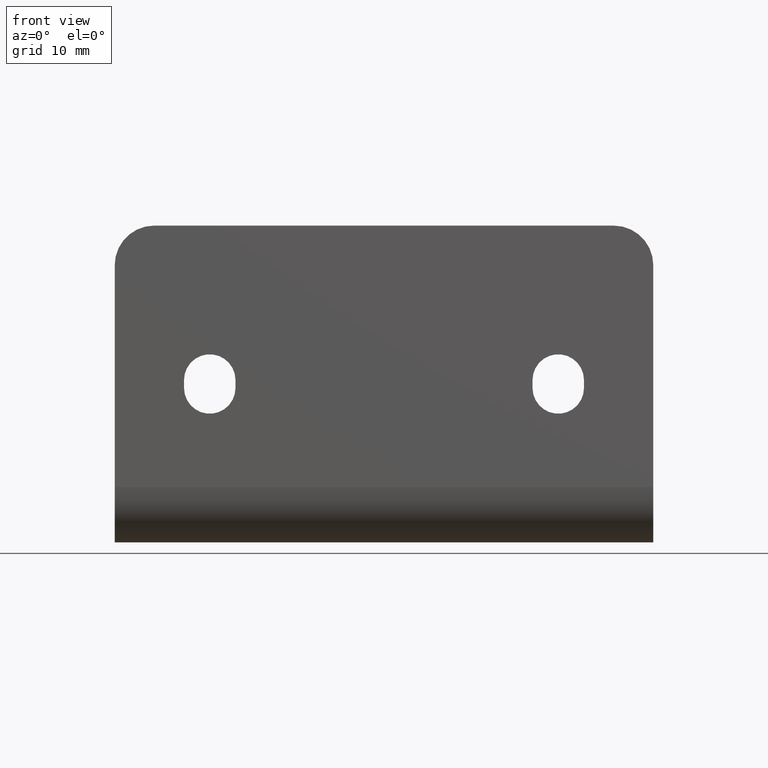
[diagram: clean part render]
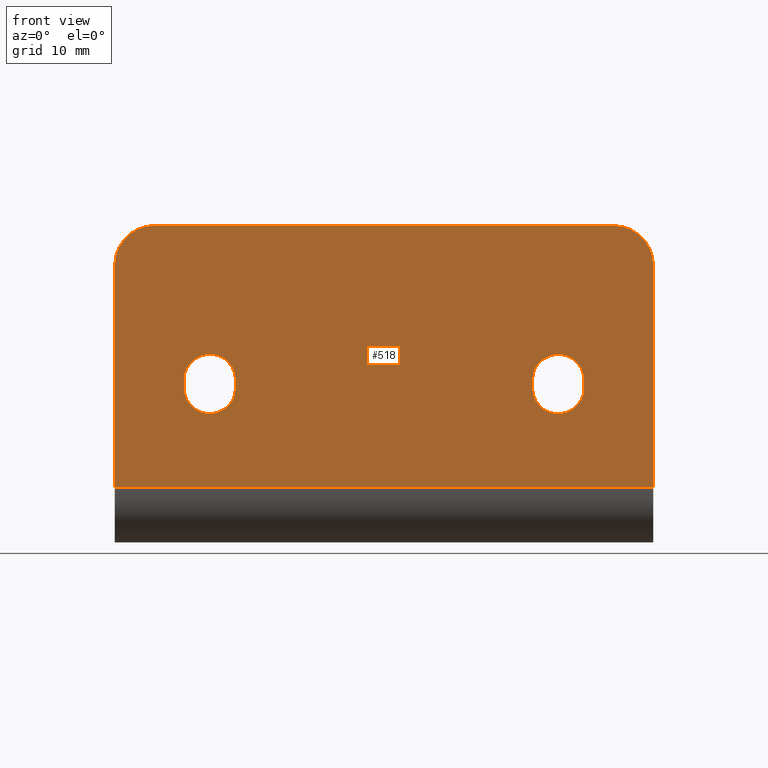
[diagram: same view with one face highlighted and labeled with its STEP entity id]
A machine part, front view. The second image highlights one B-rep face of the part: STEP entity #518.
In plain terms, the highlighted planar face has unit normal (-0, 1, 0).
Its self-contained STEP definition (entity closure, byte-faithful):
#17=FACE_BOUND('',#87,.T.);
#18=FACE_BOUND('',#88,.T.);
#31=PLANE('',#586);
#55=FACE_OUTER_BOUND('',#86,.T.);
#86=EDGE_LOOP('',(#421,#422,#423,#424,#425,#426));
#87=EDGE_LOOP('',(#427,#428,#429,#430));
#88=EDGE_LOOP('',(#431,#432,#433,#434));
#106=LINE('',#778,#155);
#109=LINE('',#787,#158);
#114=LINE('',#802,#163);
#117=LINE('',#811,#166);
#122=LINE('',#826,#171);
#128=LINE('',#843,#177);
#130=LINE('',#846,#179);
#134=LINE('',#861,#183);
#155=VECTOR('',#620,10.);
#158=VECTOR('',#631,10.);
#163=VECTOR('',#644,10.);
#166=VECTOR('',#655,10.);
#171=VECTOR('',#668,10.);
#177=VECTOR('',#684,4.19999999999999);
#179=VECTOR('',#688,10.);
#183=VECTOR('',#706,10.);
#201=CIRCLE('',#555,3.25);
#203=CIRCLE('',#559,3.25);
#205=CIRCLE('',#563,3.25);
#207=CIRCLE('',#567,3.25);
#208=CIRCLE('',#570,5.);
#211=CIRCLE('',#576,5.);
#226=VERTEX_POINT('',#768);
#227=VERTEX_POINT('',#770);
#229=VERTEX_POINT('',#776);
#231=VERTEX_POINT('',#782);
#234=VERTEX_POINT('',#792);
#235=VERTEX_POINT('',#794);
#237=VERTEX_POINT('',#800);
#239=VERTEX_POINT('',#806);
#240=VERTEX_POINT('',#813);
#241=VERTEX_POINT('',#814);
#245=VERTEX_POINT('',#824);
#249=VERTEX_POINT('',#836);
#250=VERTEX_POINT('',#837);
#251=VERTEX_POINT('',#842);
#272=EDGE_CURVE('',#227,#226,#201,.T.);
#276=EDGE_CURVE('',#226,#229,#106,.T.);
#279=EDGE_CURVE('',#229,#231,#203,.T.);
#281=EDGE_CURVE('',#231,#227,#109,.T.);
#284=EDGE_CURVE('',#235,#234,#205,.T.);
#288=EDGE_CURVE('',#234,#237,#114,.T.);
#291=EDGE_CURVE('',#237,#239,#207,.T.);
#293=EDGE_CURVE('',#239,#235,#117,.T.);
#294=EDGE_CURVE('',#240,#241,#208,.T.);
#300=EDGE_CURVE('',#245,#240,#122,.T.);
#305=EDGE_CURVE('',#249,#250,#211,.T.);
#308=EDGE_CURVE('',#250,#251,#128,.T.);
#310=EDGE_CURVE('',#245,#251,#130,.T.);
#318=EDGE_CURVE('',#241,#249,#134,.T.);
#421=ORIENTED_EDGE('',*,*,#294,.F.);
#422=ORIENTED_EDGE('',*,*,#300,.F.);
#423=ORIENTED_EDGE('',*,*,#310,.T.);
#424=ORIENTED_EDGE('',*,*,#308,.F.);
#425=ORIENTED_EDGE('',*,*,#305,.F.);
#426=ORIENTED_EDGE('',*,*,#318,.F.);
#427=ORIENTED_EDGE('',*,*,#272,.T.);
#428=ORIENTED_EDGE('',*,*,#276,.T.);
#429=ORIENTED_EDGE('',*,*,#279,.T.);
#430=ORIENTED_EDGE('',*,*,#281,.T.);
#431=ORIENTED_EDGE('',*,*,#284,.T.);
#432=ORIENTED_EDGE('',*,*,#288,.T.);
#433=ORIENTED_EDGE('',*,*,#291,.T.);
#434=ORIENTED_EDGE('',*,*,#293,.T.);
#518=ADVANCED_FACE('',(#55,#17,#18),#31,.F.);
#555=AXIS2_PLACEMENT_3D('',#771,#613,#614);
#559=AXIS2_PLACEMENT_3D('',#784,#626,#627);
#563=AXIS2_PLACEMENT_3D('',#795,#637,#638);
#567=AXIS2_PLACEMENT_3D('',#808,#650,#651);
#570=AXIS2_PLACEMENT_3D('',#815,#658,#659);
#576=AXIS2_PLACEMENT_3D('',#838,#678,#679);
#586=AXIS2_PLACEMENT_3D('',#862,#707,#708);
#613=DIRECTION('center_axis',(-4.88408820356866E-18,1.,5.58626046576697E-15));
#614=DIRECTION('ref_axis',(-1.,-4.88408820361828E-18,8.88178419700125E-15));
#620=DIRECTION('',(0.,-5.58626046576697E-15,1.));
#626=DIRECTION('center_axis',(-4.88408820356866E-18,1.,5.58626046576697E-15));
#627=DIRECTION('ref_axis',(1.,4.88408820361828E-18,-8.88178419700125E-15));
#631=DIRECTION('',(0.,5.58626046576697E-15,-1.));
#637=DIRECTION('center_axis',(-4.88408820356866E-18,1.,5.58626046576697E-15));
#638=DIRECTION('ref_axis',(-1.,-4.88408820361828E-18,8.88178419700125E-15));
#644=DIRECTION('',(0.,-5.58626046576697E-15,1.));
#650=DIRECTION('center_axis',(-4.88408820356866E-18,1.,5.58626046576697E-15));
#651=DIRECTION('ref_axis',(1.,4.88408820361828E-18,-8.88178419700125E-15));
#655=DIRECTION('',(0.,5.58626046576697E-15,-1.));
#658=DIRECTION('center_axis',(-4.88408820356866E-18,1.,5.58626046576697E-15));
#659=DIRECTION('ref_axis',(-0.707106781186548,-3.9535362287068E-15,0.707106781186548));
#668=DIRECTION('',(0.,-5.39030285815812E-15,1.));
#678=DIRECTION('center_axis',(-4.88408820356866E-18,1.,5.58626046576697E-15));
#679=DIRECTION('ref_axis',(0.707106781186548,-3.94662908492949E-15,0.707106781186548));
#684=DIRECTION('',(0.,5.32907051820075E-15,-1.));
#688=DIRECTION('',(1.,4.88408820356866E-18,2.63267146031925E-32));
#706=DIRECTION('',(1.,0.,0.));
#707=DIRECTION('center_axis',(-4.88408820356866E-18,1.,5.58626046576697E-15));
#708=DIRECTION('ref_axis',(1.,4.88408820356866E-18,2.72837888429144E-32));
#768=CARTESIAN_POINT('',(76.7542552273484,226.069817976792,19.5));
#770=CARTESIAN_POINT('',(83.2542552273484,226.069817976792,19.5));
#771=CARTESIAN_POINT('Origin',(80.0042552273484,226.069817976792,19.5));
#776=CARTESIAN_POINT('',(76.7542552273484,226.069817976792,20.5));
#778=CARTESIAN_POINT('',(76.7542552273484,226.069817976792,20.3506638568654));
#782=CARTESIAN_POINT('',(83.2542552273484,226.069817976792,20.5));
#784=CARTESIAN_POINT('Origin',(80.0042552273484,226.069817976792,20.5));
#787=CARTESIAN_POINT('',(83.2542552273484,226.069817976792,19.8506638568654));
#792=CARTESIAN_POINT('',(32.7542552273484,226.069817976792,19.5));
#794=CARTESIAN_POINT('',(39.2542552273484,226.069817976792,19.5));
#795=CARTESIAN_POINT('Origin',(36.0042552273484,226.069817976792,19.5));
#800=CARTESIAN_POINT('',(32.7542552273484,226.069817976792,20.5));
#802=CARTESIAN_POINT('',(32.7542552273484,226.069817976792,20.3506638568654));
#806=CARTESIAN_POINT('',(39.2542552273484,226.069817976792,20.5));
#808=CARTESIAN_POINT('Origin',(36.0042552273484,226.069817976792,20.5));
#811=CARTESIAN_POINT('',(39.2542552273484,226.069817976792,19.8506638568654));
#813=CARTESIAN_POINT('',(24.0042550273485,226.069817976792,35.));
#814=CARTESIAN_POINT('',(29.0042550273485,226.069817976792,40.));
#815=CARTESIAN_POINT('Origin',(29.0042550273485,226.069817976792,35.));
#824=CARTESIAN_POINT('',(24.0042550273485,226.069817976793,6.99999999999999));
#826=CARTESIAN_POINT('',(24.0042550273485,226.069817976793,6.99999999999999));
#836=CARTESIAN_POINT('',(87.0042552273484,226.069817976792,40.));
#837=CARTESIAN_POINT('',(92.0042552273484,226.069817976792,35.));
#838=CARTESIAN_POINT('Origin',(87.0042552273484,226.069817976792,35.));
#842=CARTESIAN_POINT('',(92.0042552273484,226.069817976793,6.99999999999999));
#843=CARTESIAN_POINT('',(92.0042552273484,226.069817976793,-6.1946891450771));
#846=CARTESIAN_POINT('',(58.0042551273484,226.069817976793,6.99999999999999));
#861=CARTESIAN_POINT('',(24.0042550273485,226.069817976792,40.));
#862=CARTESIAN_POINT('Origin',(58.0042551273484,226.069817976792,20.2013277137308));